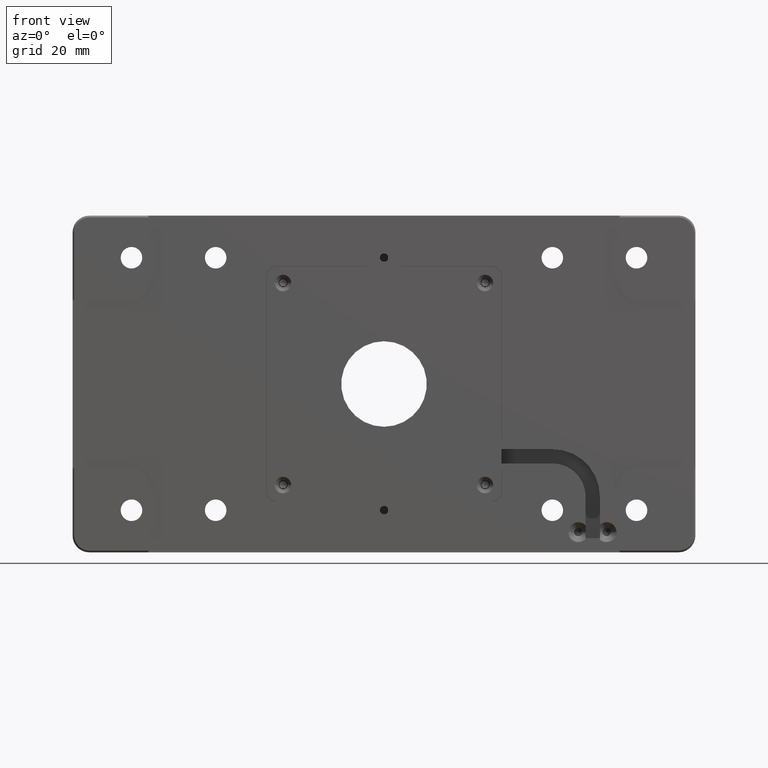
[diagram: clean part render]
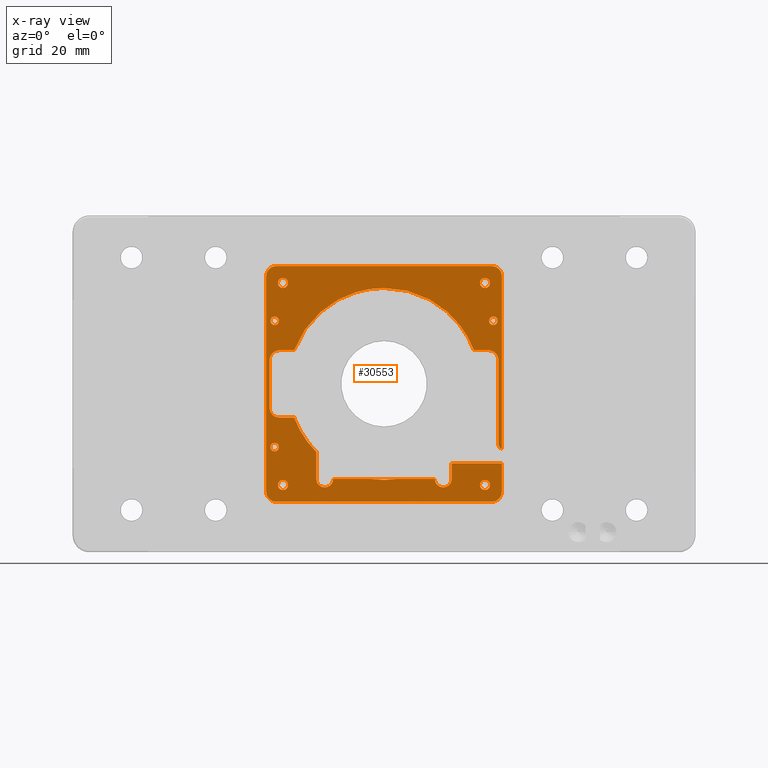
[diagram: x-ray — body ghosted, one internal face saturated and labeled with its STEP entity id]
A machine part, front view, then the same camera in x-ray: the body is ghosted and one INTERNAL B-rep face — a face not visible from any outside direction — is saturated and labeled: STEP entity #30553.
In plain terms, the highlighted planar face has unit normal (0, -1, 0).
Its self-contained STEP definition (entity closure, byte-faithful):
#87 = CARTESIAN_POINT ( 'NONE',  ( -26.68801229016583300, -28.00000000000000000, -9.999999999999305400 ) ) ;
#330 = B_SPLINE_CURVE_WITH_KNOTS ( 'NONE', 3,
 ( #2020, #46454, #46441, #2210, #2146, #2069, #46385, #46393, #2505, #2255 ),
 .UNSPECIFIED., .F., .F.,
 ( 4, 2, 2, 2, 4 ),
 ( 0.0000000000000000000, 0.2500000000000000000, 0.5000000000000000000, 0.7500000000000000000, 1.000000000000000000 ),
 .UNSPECIFIED. ) ;
#340 = VERTEX_POINT ( 'NONE', #19269 ) ;
#357 = CARTESIAN_POINT ( 'NONE',  ( -33.66712913765897500, -28.00000000000000400, 19.18663264980484200 ) ) ;
#432 = CARTESIAN_POINT ( 'NONE',  ( 31.22590219435385400, -28.00000000000000000, 18.74999989958487800 ) ) ;
#619 = CARTESIAN_POINT ( 'NONE',  ( 31.22595284015132600, -28.00000000000000000, 18.53144307675582100 ) ) ;
#665 = EDGE_CURVE ( 'NONE', #41401, #27087, #330, .T. ) ;
#682 = CARTESIAN_POINT ( 'NONE',  ( 31.28462856218772000, -28.00000000000000000, 18.31324466899677400 ) ) ;
#704 = EDGE_CURVE ( 'NONE', #25245, #1209, #22966, .T. ) ;
#805 = CARTESIAN_POINT ( 'NONE',  ( 31.50221328749738000, -28.00000000000000000, 17.93675520057112700 ) ) ;
#859 = DIRECTION ( 'NONE',  ( 0.0000000000000000000, -1.000000000000000000, 0.0000000000000000000 ) ) ;
#870 = CARTESIAN_POINT ( 'NONE',  ( -34.00000000000000700, -27.99999999999999600, 6.999999999999995600 ) ) ;
#872 = CARTESIAN_POINT ( 'NONE',  ( 31.66258525230723800, -27.99999999999999600, 17.77611298242323900 ) ) ;
#933 = CARTESIAN_POINT ( 'NONE',  ( -32.00000000000000000, -28.00000000000000400, -32.00000000000000000 ) ) ;
#991 = CARTESIAN_POINT ( 'NONE',  ( 32.03932011848849000, -28.00000000000000000, 17.55882345791289700 ) ) ;
#1085 = EDGE_CURVE ( 'NONE', #53296, #41401, #23192, .T. ) ;
#1152 = VERTEX_POINT ( 'NONE', #16107 ) ;
#1154 = CARTESIAN_POINT ( 'NONE',  ( 32.25849930359140700, -27.99999999999999600, 17.49990541192279600 ) ) ;
#1209 = VERTEX_POINT ( 'NONE', #27990 ) ;
#1217 = CARTESIAN_POINT ( 'NONE',  ( 32.69340603045252900, -28.00000000000000400, 17.50009458807818100 ) ) ;
#1834 = ORIENTED_EDGE ( 'NONE', *, *, #14885, .T. ) ;
#1888 = CARTESIAN_POINT ( 'NONE',  ( 35.00000000000000000, -28.00000000000000400, -32.00000000000000000 ) ) ;
#1938 = ORIENTED_EDGE ( 'NONE', *, *, #14469, .T. ) ;
#1964 = CARTESIAN_POINT ( 'NONE',  ( 35.00000000000000000, -28.00000000000000000, -33.28000000000000100 ) ) ;
#2020 = CARTESIAN_POINT ( 'NONE',  ( -33.10095264191996700, -28.00000000000000000, -17.66746824526988400 ) ) ;
#2069 = CARTESIAN_POINT ( 'NONE',  ( -31.66258525230698200, -27.99999999999999600, -17.77611298242349800 ) ) ;
#2137 = CARTESIAN_POINT ( 'NONE',  ( -33.29020018991170100, -28.00000000000000000, -17.77673036804654300 ) ) ;
#2146 = CARTESIAN_POINT ( 'NONE',  ( -32.03932011848875300, -28.00000000000000000, -17.55882345791264100 ) ) ;
#2194 = CARTESIAN_POINT ( 'NONE',  ( -33.10095264191996700, -28.00000000000000000, -17.66746824526988400 ) ) ;
#2210 = CARTESIAN_POINT ( 'NONE',  ( -32.25849930359140700, -27.99999999999999600, -17.49990541192278600 ) ) ;
#2255 = CARTESIAN_POINT ( 'NONE',  ( -31.22590219435418700, -28.00000000000000000, -18.74999979623689600 ) ) ;
#2310 = LINE ( 'NONE', #37746, #45315 ) ;
#2477 = EDGE_CURVE ( 'NONE', #49043, #8550, #32251, .T. ) ;
#2505 = CARTESIAN_POINT ( 'NONE',  ( -31.22595284015134000, -28.00000000000000000, -18.53144307674995200 ) ) ;
#2561 = VERTEX_POINT ( 'NONE', #37437 ) ;
#2684 = DIRECTION ( 'NONE',  ( 0.0000000000000000000, -1.000000000000000000, 0.0000000000000000000 ) ) ;
#2766 = B_SPLINE_CURVE_WITH_KNOTS ( 'NONE', 3,
 ( #15970, #16026, #15783, #15775, #15617, #15604, #15484, #15475, #15427, #15417 ),
 .UNSPECIFIED., .F., .F.,
 ( 4, 2, 2, 2, 4 ),
 ( 0.0000000000000000000, 0.2499999999999996700, 0.4999999999999997800, 0.7499999999999998900, 1.000000000000000000 ),
 .UNSPECIFIED. ) ;
#2984 = CARTESIAN_POINT ( 'NONE',  ( -7.132304840620642000, -27.99999999999999600, 27.63065664306666500 ) ) ;
#3175 = EDGE_CURVE ( 'NONE', #17336, #49043, #9396, .T. ) ;
#3216 = CARTESIAN_POINT ( 'NONE',  ( 33.10095264191996700, -28.00000000000000000, 17.66746824526988000 ) ) ;
#3435 = CARTESIAN_POINT ( 'NONE',  ( 2.874005661423864000, -28.00000000000000700, 28.39084545426889200 ) ) ;
#3504 = EDGE_LOOP ( 'NONE', ( #34310, #10320, #25775, #6775 ) ) ;
#3514 = VERTEX_POINT ( 'NONE', #15046 ) ;
#3617 = CARTESIAN_POINT ( 'NONE',  ( 23.37137739192552000, -28.00000000000000000, 16.37381072539857700 ) ) ;
#3668 = DIRECTION ( 'NONE',  ( 0.0000000000000000000, 0.0000000000000000000, 1.000000000000000000 ) ) ;
#3825 = CARTESIAN_POINT ( 'NONE',  ( 17.60000000000000100, -28.00000000000000400, -30.69999999999999900 ) ) ;
#3898 = CARTESIAN_POINT ( 'NONE',  ( 34.00000000000001400, -27.99999999999999600, -18.20773985433513800 ) ) ;
#4003 = EDGE_CURVE ( 'NONE', #19454, #11029, #49802, .T. ) ;
#4006 = CARTESIAN_POINT ( 'NONE',  ( -33.10095264191998200, -28.00000000000000000, 17.66746824526987300 ) ) ;
#4059 = CARTESIAN_POINT ( 'NONE',  ( -32.91170511629828600, -28.00000000000000000, 17.55820613540876400 ) ) ;
#4126 = CARTESIAN_POINT ( 'NONE',  ( -32.69340603193760600, -28.00000000000000000, 17.49990542104169600 ) ) ;
#4183 = CARTESIAN_POINT ( 'NONE',  ( -32.25849930651780500, -28.00000000000000000, 17.50009457895926000 ) ) ;
#4199 = CARTESIAN_POINT ( 'NONE',  ( -32.03922553835476400, -27.99999999999999600, 17.55865963294138900 ) ) ;
#4253 = CARTESIAN_POINT ( 'NONE',  ( -31.66267984008189300, -28.00000000000000000, 17.77627680298322600 ) ) ;
#4267 = ORIENTED_EDGE ( 'NONE', *, *, #1085, .T. ) ;
#4277 = DIRECTION ( 'NONE',  ( 0.0000000000000000000, -0.0000000000000000000, 1.000000000000000000 ) ) ;
#4315 = CARTESIAN_POINT ( 'NONE',  ( -31.50206571012599000, -27.99999999999999600, 17.93663250790654500 ) ) ;
#4359 = CARTESIAN_POINT ( 'NONE',  ( 30.00000000000000000, -28.00000000000000000, -28.49999999999999600 ) ) ;
#4362 = CARTESIAN_POINT ( 'NONE',  ( -31.28477614617627400, -28.00000000000000400, 18.31336735019997500 ) ) ;
#4376 = CARTESIAN_POINT ( 'NONE',  ( -31.22595253256890800, -28.00000000000000000, 18.53216587060089900 ) ) ;
#4473 = CARTESIAN_POINT ( 'NONE',  ( -31.22591047489136100, -28.00000000000000000, 18.74999978447374400 ) ) ;
#4497 = CARTESIAN_POINT ( 'NONE',  ( 30.00000000000000000, -28.00000000000000000, 30.00000000000000000 ) ) ;
#4561 = CARTESIAN_POINT ( 'NONE',  ( -33.28922544375562600, -28.00000000000000000, 19.72372319701823400 ) ) ;
#4858 = CARTESIAN_POINT ( 'NONE',  ( -34.00000000000000700, -27.99999999999999600, -7.000000000000000900 ) ) ;
#4934 = EDGE_CURVE ( 'NONE', #11029, #43074, #42996, .T. ) ;
#5052 = EDGE_CURVE ( 'NONE', #8550, #14691, #22258, .T. ) ;
#5137 = DIRECTION ( 'NONE',  ( -1.000000000000000000, 0.0000000000000000000, 0.0000000000000000000 ) ) ;
#5319 = EDGE_CURVE ( 'NONE', #43074, #20417, #32490, .T. ) ;
#5381 = VERTEX_POINT ( 'NONE', #47652 ) ;
#5392 = VERTEX_POINT ( 'NONE', #48069 ) ;
#5490 = ORIENTED_EDGE ( 'NONE', *, *, #8140, .T. ) ;
#5654 = EDGE_CURVE ( 'NONE', #46691, #25245, #2310, .T. ) ;
#5724 = VERTEX_POINT ( 'NONE', #32566 ) ;
#5908 = AXIS2_PLACEMENT_3D ( 'NONE', #40905, #16039, #45034 ) ;
#5978 = ORIENTED_EDGE ( 'NONE', *, *, #45956, .T. ) ;
#6028 = CARTESIAN_POINT ( 'NONE',  ( -31.00000000000000000, -27.99999999999999600, -10.00000000000000000 ) ) ;
#6073 = VERTEX_POINT ( 'NONE', #13065 ) ;
#6158 = DIRECTION ( 'NONE',  ( 0.0000000000000000000, 0.0000000000000000000, -1.000000000000000000 ) ) ;
#6172 = VECTOR ( 'NONE', #24354, 1000.000000000000000 ) ;
#6177 = CARTESIAN_POINT ( 'NONE',  ( -33.72600308948590700, -28.00000000000000400, -18.75000010041512200 ) ) ;
#6187 = CARTESIAN_POINT ( 'NONE',  ( -33.72595244368868400, -28.00000000000000000, -18.96855692324992400 ) ) ;
#6203 = DIRECTION ( 'NONE',  ( 0.0000000000000000000, -1.000000000000000000, 0.0000000000000000000 ) ) ;
#6210 = CARTESIAN_POINT ( 'NONE',  ( -30.00000000000000000, -28.00000000000000000, -30.00000000000000000 ) ) ;
#6234 = CARTESIAN_POINT ( 'NONE',  ( -33.66727672164874700, -28.00000000000000000, -19.18675533101083300 ) ) ;
#6244 = CARTESIAN_POINT ( 'NONE',  ( -33.44969199634621800, -28.00000000000000000, -19.56324479942129800 ) ) ;
#6297 = CARTESIAN_POINT ( 'NONE',  ( -33.28932003153082800, -27.99999999999999600, -19.72388701757728700 ) ) ;
#6358 = B_SPLINE_CURVE_WITH_KNOTS ( 'NONE', 3,
 ( #41522, #41593, #41461, #41410, #41397, #41358 ),
 .UNSPECIFIED., .F., .F.,
 ( 4, 2, 4 ),
 ( 0.0000000000000000000, 0.5000000000000000000, 1.000000000000000000 ),
 .UNSPECIFIED. ) ;
#6367 = CARTESIAN_POINT ( 'NONE',  ( -32.91258516535347000, -28.00000000000000000, -19.94117654208659100 ) ) ;
#6374 = ORIENTED_EDGE ( 'NONE', *, *, #3175, .T. ) ;
#6432 = CARTESIAN_POINT ( 'NONE',  ( -32.69340598024885500, -27.99999999999999600, -20.00009458807862800 ) ) ;
#6480 = CARTESIAN_POINT ( 'NONE',  ( -32.25849925338722100, -28.00000000000000400, -19.99990541192040200 ) ) ;
#6544 = CARTESIAN_POINT ( 'NONE',  ( -32.03957899341080700, -28.00000000000000000, -19.94143522953950100 ) ) ;
#6553 = CARTESIAN_POINT ( 'NONE',  ( -31.85095264192006000, -27.99999999999999600, -19.83253175473011300 ) ) ;
#6697 = ORIENTED_EDGE ( 'NONE', *, *, #8922, .T. ) ;
#6712 = EDGE_CURVE ( 'NONE', #1209, #30735, #10840, .T. ) ;
#6775 = ORIENTED_EDGE ( 'NONE', *, *, #12747, .T. ) ;
#6836 = AXIS2_PLACEMENT_3D ( 'NONE', #44634, #19872, #48713 ) ;
#6881 = CARTESIAN_POINT ( 'NONE',  ( 36.39999999999999900, -28.00000000000000000, 9.999999999999495500 ) ) ;
#7027 = CARTESIAN_POINT ( 'NONE',  ( -25.57737458940992400, -28.00000000000000400, 12.65298080545476900 ) ) ;
#7110 = EDGE_CURVE ( 'NONE', #30735, #37321, #43950, .T. ) ;
#7202 = CARTESIAN_POINT ( 'NONE',  ( -2.873832697296481200, -27.99999999999999600, 28.39092742658381500 ) ) ;
#7650 = CARTESIAN_POINT ( 'NONE',  ( -31.85095264192004500, -27.99999999999999600, 19.83253175473012700 ) ) ;
#7874 = CARTESIAN_POINT ( 'NONE',  ( 25.57751203921187900, -28.00000000000000000, 12.65284760033192600 ) ) ;
#7906 = EDGE_CURVE ( 'NONE', #14691, #17336, #35803, .T. ) ;
#8095 = B_SPLINE_CURVE_WITH_KNOTS ( 'NONE', 3,
 ( #6553, #6544, #6480, #6432, #6367, #6297, #6244, #6234, #6187, #6177 ),
 .UNSPECIFIED., .F., .F.,
 ( 4, 2, 2, 2, 4 ),
 ( 0.0000000000000000000, 0.2500000000000000000, 0.5000000000000000000, 0.7500000000000000000, 1.000000000000000000 ),
 .UNSPECIFIED. ) ;
#8113 = EDGE_CURVE ( 'NONE', #21174, #31301, #33583, .T. ) ;
#8140 = EDGE_CURVE ( 'NONE', #27087, #52023, #23561, .T. ) ;
#8238 = ORIENTED_EDGE ( 'NONE', *, *, #12960, .T. ) ;
#8323 = CARTESIAN_POINT ( 'NONE',  ( 34.99999999999989300, -27.99999999999999600, -19.31421356237236600 ) ) ;
#8550 = VERTEX_POINT ( 'NONE', #19846 ) ;
#8568 = CIRCLE ( 'NONE', #31070, 1.500000000000001300 ) ;
#8747 = AXIS2_PLACEMENT_3D ( 'NONE', #53381, #28824, #3668 ) ;
#8795 = DIRECTION ( 'NONE',  ( 0.0000000000000000000, 0.0000000000000000000, -1.000000000000000000 ) ) ;
#8858 = CARTESIAN_POINT ( 'NONE',  ( -32.69340597730876400, -28.00000000000000000, 19.99990542103791600 ) ) ;
#8877 = ORIENTED_EDGE ( 'NONE', *, *, #5319, .T. ) ;
#8922 = EDGE_CURVE ( 'NONE', #31301, #43010, #13424, .T. ) ;
#9251 = ORIENTED_EDGE ( 'NONE', *, *, #15767, .T. ) ;
#9396 = B_SPLINE_CURVE_WITH_KNOTS ( 'NONE', 3,
 ( #53815, #53589, #53073, #52891, #51475, #51292 ),
 .UNSPECIFIED., .F., .F.,
 ( 4, 2, 4 ),
 ( 0.0000000000000000000, 0.5000000000000000000, 1.000000000000000000 ),
 .UNSPECIFIED. ) ;
#9400 = CARTESIAN_POINT ( 'NONE',  ( 31.78081704920545600, -27.99999999999999600, 9.923673225478440300 ) ) ;
#9553 = EDGE_CURVE ( 'NONE', #43010, #39509, #48984, .T. ) ;
#9650 = EDGE_CURVE ( 'NONE', #37321, #21174, #6358, .T. ) ;
#9802 = FACE_OUTER_BOUND ( 'NONE', #20342, .T. ) ;
#9830 = CARTESIAN_POINT ( 'NONE',  ( -4.124318125459968300, -28.00000000000000400, -28.19999999999993200 ) ) ;
#9841 = DIRECTION ( 'NONE',  ( 0.0000000000000000000, -1.000000000000000000, 0.0000000000000000000 ) ) ;
#9869 = B_SPLINE_CURVE_WITH_KNOTS ( 'NONE', 3,
 ( #50946, #26550, #34863, #9830 ),
 .UNSPECIFIED., .F., .F.,
 ( 4, 4 ),
 ( 0.0000000000000000000, 1.000000000000000000 ),
 .UNSPECIFIED. ) ;
#9903 = LINE ( 'NONE', #53329, #51374 ) ;
#10202 = VECTOR ( 'NONE', #50756, 1000.000000000000000 ) ;
#10236 = CARTESIAN_POINT ( 'NONE',  ( 32.91232629042924200, -28.00000000000000000, 17.55856477046051700 ) ) ;
#10320 = ORIENTED_EDGE ( 'NONE', *, *, #16380, .T. ) ;
#10322 = CIRCLE ( 'NONE', #6836, 1.500000000000001300 ) ;
#10382 = CARTESIAN_POINT ( 'NONE',  ( 20.03635998224450200, -28.00000000000000400, -28.85073236080429000 ) ) ;
#10609 = CARTESIAN_POINT ( 'NONE',  ( 34.00000000000000000, -27.99999999999999600, -17.89999999999999900 ) ) ;
#10674 = EDGE_CURVE ( 'NONE', #39509, #5392, #2766, .T. ) ;
#10740 = VECTOR ( 'NONE', #44658, 1000.000000000000000 ) ;
#10840 = B_SPLINE_CURVE_WITH_KNOTS ( 'NONE', 3,
 ( #33222, #21507, #10862, #25906, #24327, #51919, #46786, #42909, #31877, #49037 ),
 .UNSPECIFIED., .F., .F.,
 ( 4, 2, 2, 2, 4 ),
 ( 0.0000000000000000000, 0.2500000000000000000, 0.5000000000000000000, 0.7500000000000000000, 1.000000000000000000 ),
 .UNSPECIFIED. ) ;
#10862 = CARTESIAN_POINT ( 'NONE',  ( -18.25073236079884300, -28.00000000000000400, -30.63635998224676300 ) ) ;
#10950 = EDGE_CURVE ( 'NONE', #52023, #53296, #8095, .T. ) ;
#11018 = EDGE_CURVE ( 'NONE', #24202, #47863, #14863, .T. ) ;
#11029 = VERTEX_POINT ( 'NONE', #3825 ) ;
#11054 = CARTESIAN_POINT ( 'NONE',  ( 32.00000000000000000, -27.99999999999999600, 32.00000000000000000 ) ) ;
#11118 = FACE_BOUND ( 'NONE', #24836, .T. ) ;
#11252 = CARTESIAN_POINT ( 'NONE',  ( -23.37133373004273900, -28.00000000000000000, 16.37377672839752700 ) ) ;
#11303 = EDGE_CURVE ( 'NONE', #5392, #5381, #9903, .T. ) ;
#11442 = CARTESIAN_POINT ( 'NONE',  ( 2.094146026541974000E-015, -27.99999999999999600, 28.49999999999999600 ) ) ;
#11445 = AXIS2_PLACEMENT_3D ( 'NONE', #6210, #6203, #6158 ) ;
#11480 = LINE ( 'NONE', #1964, #43368 ) ;
#11536 = ORIENTED_EDGE ( 'NONE', *, *, #13284, .F. ) ;
#11545 = LINE ( 'NONE', #21785, #45990 ) ;
#11649 = EDGE_CURVE ( 'NONE', #20417, #33311, #39212, .T. ) ;
#11889 = ORIENTED_EDGE ( 'NONE', *, *, #13602, .F. ) ;
#11911 = CARTESIAN_POINT ( 'NONE',  ( 30.00000000000000000, -28.00000000000000000, -31.50000000000000000 ) ) ;
#11918 = CARTESIAN_POINT ( 'NONE',  ( 7.132288325055107200, -28.00000000000000000, 27.63060382836711100 ) ) ;
#11936 = VERTEX_POINT ( 'NONE', #46908 ) ;
#12010 = EDGE_CURVE ( 'NONE', #29478, #50358, #41780, .T. ) ;
#12105 = CARTESIAN_POINT ( 'NONE',  ( 26.68801229016617400, -27.99999999999999600, 9.999999999999532800 ) ) ;
#12143 = DIRECTION ( 'NONE',  ( 0.0000000000000000000, -0.0000000000000000000, -1.000000000000000000 ) ) ;
#12175 = VERTEX_POINT ( 'NONE', #39310 ) ;
#12189 = VERTEX_POINT ( 'NONE', #38003 ) ;
#12361 = CARTESIAN_POINT ( 'NONE',  ( 33.10095264191996700, -28.00000000000000000, 17.66746824526988000 ) ) ;
#12533 = CARTESIAN_POINT ( 'NONE',  ( 33.29020018991509700, -28.00000000000000000, 17.77673036804850100 ) ) ;
#12564 = EDGE_LOOP ( 'NONE', ( #37147, #20383, #6374, #18119 ) ) ;
#12663 = VECTOR ( 'NONE', #50438, 1000.000000000000000 ) ;
#12729 = CARTESIAN_POINT ( 'NONE',  ( 33.44983964673740200, -27.99999999999999600, 17.93663258842120100 ) ) ;
#12747 = EDGE_CURVE ( 'NONE', #47863, #38130, #25337, .T. ) ;
#12910 = CARTESIAN_POINT ( 'NONE',  ( 33.66712919676649600, -28.00000000000000400, 18.31336749853451100 ) ) ;
#12916 = EDGE_LOOP ( 'NONE', ( #14213, #31626 ) ) ;
#12960 = EDGE_CURVE ( 'NONE', #3514, #19454, #38400, .T. ) ;
#13065 = CARTESIAN_POINT ( 'NONE',  ( -32.00000000000000000, -27.99999999999999600, 35.00000000000000000 ) ) ;
#13089 = CARTESIAN_POINT ( 'NONE',  ( -32.04020016754425600, -28.00000000000000000, 19.94179386459269700 ) ) ;
#13257 = CARTESIAN_POINT ( 'NONE',  ( 33.72595281056379000, -28.00000000000000000, 18.53216075167965800 ) ) ;
#13284 = EDGE_CURVE ( 'NONE', #50358, #29478, #37734, .T. ) ;
#13424 = B_SPLINE_CURVE_WITH_KNOTS ( 'NONE', 3,
 ( #29695, #29749, #29806, #28571, #28973, #28518, #28257, #26005, #25038, #24987 ),
 .UNSPECIFIED., .F., .F.,
 ( 4, 2, 2, 2, 4 ),
 ( 0.0000000000000000000, 0.2500000000000000000, 0.5000000000000000000, 0.7500000000000000000, 1.000000000000000000 ),
 .UNSPECIFIED. ) ;
#13449 = EDGE_CURVE ( 'NONE', #12175, #30241, #10322, .T. ) ;
#13473 = ORIENTED_EDGE ( 'NONE', *, *, #9553, .T. ) ;
#13517 = EDGE_CURVE ( 'NONE', #19094, #23963, #36738, .T. ) ;
#13602 = EDGE_CURVE ( 'NONE', #33779, #11936, #40940, .T. ) ;
#13643 = CARTESIAN_POINT ( 'NONE',  ( 32.84022219543297200, -28.00000000000000000, 9.402316104331871900 ) ) ;
#13750 = EDGE_CURVE ( 'NONE', #50487, #26177, #53670, .T. ) ;
#13829 = EDGE_CURVE ( 'NONE', #23963, #5724, #51099, .T. ) ;
#13914 = CARTESIAN_POINT ( 'NONE',  ( -15.10000000000000100, -28.00000000000000400, -28.20000000000000300 ) ) ;
#13991 = EDGE_CURVE ( 'NONE', #17605, #30455, #40295, .T. ) ;
#14064 = EDGE_CURVE ( 'NONE', #17605, #38317, #14251, .T. ) ;
#14213 = ORIENTED_EDGE ( 'NONE', *, *, #27012, .F. ) ;
#14251 = LINE ( 'NONE', #25234, #22799 ) ;
#14265 = CARTESIAN_POINT ( 'NONE',  ( 18.25061273245204100, -28.00000000000000000, -30.63656627709274000 ) ) ;
#14345 = CARTESIAN_POINT ( 'NONE',  ( 33.72600308948555900, -28.00000000000000000, 18.75000020670407600 ) ) ;
#14402 = EDGE_CURVE ( 'NONE', #38317, #19253, #34463, .T. ) ;
#14469 = EDGE_CURVE ( 'NONE', #19253, #6073, #45375, .T. ) ;
#14548 = EDGE_CURVE ( 'NONE', #6073, #340, #40230, .T. ) ;
#14553 = B_SPLINE_CURVE_WITH_KNOTS ( 'NONE', 3,
 ( #21409, #17126, #357, #29716, #4561, #33903, #8858, #37998, #13089, #42155 ),
 .UNSPECIFIED., .F., .F.,
 ( 4, 2, 2, 2, 4 ),
 ( 0.0000000000000000000, 0.2500000000000000000, 0.5000000000000000000, 0.7500000000000000000, 1.000000000000000000 ),
 .UNSPECIFIED. ) ;
#14691 = VERTEX_POINT ( 'NONE', #49670 ) ;
#14809 = EDGE_CURVE ( 'NONE', #340, #1152, #11545, .T. ) ;
#14834 = ORIENTED_EDGE ( 'NONE', *, *, #14064, .T. ) ;
#14863 = B_SPLINE_CURVE_WITH_KNOTS ( 'NONE', 3,
 ( #4473, #4376, #4362, #4315, #4253, #4199, #4183, #4126, #4059, #4006 ),
 .UNSPECIFIED., .F., .F.,
 ( 4, 2, 2, 2, 4 ),
 ( 0.0000000000000000000, 0.2500000000000000000, 0.5000000000000000000, 0.7500000000000000000, 1.000000000000000000 ),
 .UNSPECIFIED. ) ;
#14873 = EDGE_CURVE ( 'NONE', #1152, #24010, #21471, .T. ) ;
#14874 = CARTESIAN_POINT ( 'NONE',  ( 20.10000000000000900, -28.00000000000000000, -28.53133115260559500 ) ) ;
#14885 = EDGE_CURVE ( 'NONE', #5724, #24231, #45715, .T. ) ;
#15046 = CARTESIAN_POINT ( 'NONE',  ( 20.10000000000000500, -28.00000000000000000, -23.59999999999999800 ) ) ;
#15075 = AXIS2_PLACEMENT_3D ( 'NONE', #19474, #2684, #32032 ) ;
#15076 = CARTESIAN_POINT ( 'NONE',  ( -33.66712919676511700, -28.00000000000000400, -18.31336749853455000 ) ) ;
#15093 = CARTESIAN_POINT ( 'NONE',  ( -33.72595281056378300, -28.00000000000000000, -18.53216075167403100 ) ) ;
#15319 = DIRECTION ( 'NONE',  ( -1.000000000000000000, 0.0000000000000000000, 0.0000000000000000000 ) ) ;
#15382 = EDGE_CURVE ( 'NONE', #24010, #2561, #40178, .T. ) ;
#15417 = CARTESIAN_POINT ( 'NONE',  ( -31.00000000000000000, -27.99999999999999600, 10.00000000000000200 ) ) ;
#15422 = CARTESIAN_POINT ( 'NONE',  ( 20.10000000000000500, -27.99999999999999600, -28.19999999999999600 ) ) ;
#15427 = CARTESIAN_POINT ( 'NONE',  ( -31.39801401208922000, -28.00000000000000400, 10.00000000000000200 ) ) ;
#15454 = EDGE_CURVE ( 'NONE', #2561, #49852, #47207, .T. ) ;
#15475 = CARTESIAN_POINT ( 'NONE',  ( -31.78069744445431200, -28.00000000000000400, 9.923879532511287800 ) ) ;
#15484 = CARTESIAN_POINT ( 'NONE',  ( -32.51540314973621500, -28.00000000000000000, 9.619397662556423300 ) ) ;
#15525 = CARTESIAN_POINT ( 'NONE',  ( -20.63533303619852400, -27.99999999999999300, 19.70997322765100900 ) ) ;
#15532 = EDGE_CURVE ( 'NONE', #49852, #12189, #11480, .T. ) ;
#15604 = CARTESIAN_POINT ( 'NONE',  ( -32.84032458278743100, -28.00000000000000700, 9.402418491686315600 ) ) ;
#15611 = CARTESIAN_POINT ( 'NONE',  ( 19.78303768031192400, -27.99999999999999600, -29.46268480102115100 ) ) ;
#15617 = CARTESIAN_POINT ( 'NONE',  ( -33.40231610433185900, -28.00000000000000700, 8.840222195432968300 ) ) ;
#15767 = EDGE_CURVE ( 'NONE', #12189, #3514, #38191, .T. ) ;
#15775 = CARTESIAN_POINT ( 'NONE',  ( -33.61960396959365500, -27.99999999999999600, 8.515283544980691800 ) ) ;
#15783 = CARTESIAN_POINT ( 'NONE',  ( -33.92367322547407600, -27.99999999999999300, 7.780817049209848500 ) ) ;
#15970 = CARTESIAN_POINT ( 'NONE',  ( -34.00000000000000700, -27.99999999999999600, 6.999999999999995600 ) ) ;
#16026 = CARTESIAN_POINT ( 'NONE',  ( -34.00000000000001400, -27.99999999999999600, 7.397635290875415500 ) ) ;
#16039 = DIRECTION ( 'NONE',  ( 0.0000000000000000000, -1.000000000000000000, 0.0000000000000000000 ) ) ;
#16107 = CARTESIAN_POINT ( 'NONE',  ( -35.00000000000000000, -28.00000000000000000, -32.00000000000000000 ) ) ;
#16152 = CARTESIAN_POINT ( 'NONE',  ( 19.60187862803531500, -28.00000000000000000, -29.73355290977552900 ) ) ;
#16178 = CARTESIAN_POINT ( 'NONE',  ( 11.21637464472141900, -27.99999999999999300, 26.23914926172906800 ) ) ;
#16186 = VERTEX_POINT ( 'NONE', #43548 ) ;
#16226 = CARTESIAN_POINT ( 'NONE',  ( -20.10000000000000900, -28.00000000000000000, -36.39999999999999900 ) ) ;
#16334 = CARTESIAN_POINT ( 'NONE',  ( 19.13365527789742900, -27.99999999999999600, -30.20198099615721100 ) ) ;
#16380 = EDGE_CURVE ( 'NONE', #16186, #24202, #42310, .T. ) ;
#16510 = CARTESIAN_POINT ( 'NONE',  ( 18.86280442937341600, -28.00000000000000000, -30.38283138546369200 ) ) ;
#16616 = EDGE_CURVE ( 'NONE', #30241, #12175, #42644, .T. ) ;
#16787 = CARTESIAN_POINT ( 'NONE',  ( 20.10000000000000500, -28.00000000000000000, -36.39999999999999900 ) ) ;
#16841 = DIRECTION ( 'NONE',  ( 0.0000000000000000000, -0.0000000000000000000, -1.000000000000000000 ) ) ;
#16862 = CARTESIAN_POINT ( 'NONE',  ( 17.93170987214779900, -28.00000000000000000, -30.69999999999999900 ) ) ;
#17025 = ORIENTED_EDGE ( 'NONE', *, *, #13517, .T. ) ;
#17034 = CARTESIAN_POINT ( 'NONE',  ( 17.60000000000000100, -28.00000000000000400, -30.69999999999999900 ) ) ;
#17126 = CARTESIAN_POINT ( 'NONE',  ( -33.72595275127112300, -28.00000000000000000, 18.96783412941157800 ) ) ;
#17336 = VERTEX_POINT ( 'NONE', #51461 ) ;
#17605 = VERTEX_POINT ( 'NONE', #8323 ) ;
#17867 = CARTESIAN_POINT ( 'NONE',  ( 33.61939766255645200, -28.00000000000000000, 8.515403149736204800 ) ) ;
#18020 = EDGE_CURVE ( 'NONE', #24231, #30455, #21796, .T. ) ;
#18119 = ORIENTED_EDGE ( 'NONE', *, *, #2477, .T. ) ;
#18293 = AXIS2_PLACEMENT_3D ( 'NONE', #44072, #44012, #44002 ) ;
#18497 = CARTESIAN_POINT ( 'NONE',  ( 34.00000000000000000, -27.99999999999999600, 7.000000000000000900 ) ) ;
#19094 = VERTEX_POINT ( 'NONE', #30111 ) ;
#19215 = AXIS2_PLACEMENT_3D ( 'NONE', #22536, #51280, #26729 ) ;
#19253 = VERTEX_POINT ( 'NONE', #21672 ) ;
#19269 = CARTESIAN_POINT ( 'NONE',  ( -35.00000000000000000, -27.99999999999999600, 32.00000000000000000 ) ) ;
#19454 = VERTEX_POINT ( 'NONE', #48291 ) ;
#19474 = CARTESIAN_POINT ( 'NONE',  ( 36.39999999999999900, -28.00000000000000000, -36.39999999999999900 ) ) ;
#19533 = CARTESIAN_POINT ( 'NONE',  ( 33.72595244368870500, -28.00000000000000000, 18.96855692323890700 ) ) ;
#19553 = VECTOR ( 'NONE', #40264, 1000.000000000000000 ) ;
#19709 = CARTESIAN_POINT ( 'NONE',  ( 33.66727672165424000, -28.00000000000000000, 19.18675533100134700 ) ) ;
#19761 = CARTESIAN_POINT ( 'NONE',  ( -17.41934897229161200, -28.00000000000000000, 22.60278934231655200 ) ) ;
#19846 = CARTESIAN_POINT ( 'NONE',  ( 33.72600308948555900, -28.00000000000000000, 18.75000020670407600 ) ) ;
#19872 = DIRECTION ( 'NONE',  ( 0.0000000000000000000, -1.000000000000000000, 0.0000000000000000000 ) ) ;
#20342 = EDGE_LOOP ( 'NONE', ( #49001, #14834, #31132, #1938, #39934, #26262, #52817, #26366, #47435, #29239, #9251, #8238, #20613, #46571, #8877, #23575, #5978, #48681, #52620, #44524, #23102, #32015, #23493, #6697, #13473, #21987, #44237, #37532, #17025, #43756, #1834, #51799 ) ) ;
#20383 = ORIENTED_EDGE ( 'NONE', *, *, #7906, .T. ) ;
#20390 = CARTESIAN_POINT ( 'NONE',  ( -31.28462582824703700, -27.99999999999999600, 19.18675055515830500 ) ) ;
#20417 = VERTEX_POINT ( 'NONE', #39821 ) ;
#20418 = CARTESIAN_POINT ( 'NONE',  ( 15.05368526441172100, -28.00000000000000000, 24.24265589064396000 ) ) ;
#20613 = ORIENTED_EDGE ( 'NONE', *, *, #4003, .T. ) ;
#20791 = CARTESIAN_POINT ( 'NONE',  ( 33.44969199634074600, -28.00000000000000000, 19.56324479943078700 ) ) ;
#20927 = CARTESIAN_POINT ( 'NONE',  ( -33.10095264191998200, -28.00000000000000000, 17.66746824526987300 ) ) ;
#21096 = CARTESIAN_POINT ( 'NONE',  ( -20.10000000000000500, -28.00000000000000000, -28.20000000000000300 ) ) ;
#21174 = VERTEX_POINT ( 'NONE', #87 ) ;
#21409 = CARTESIAN_POINT ( 'NONE',  ( -33.72599480894907500, -28.00000000000000400, 18.75000010923730900 ) ) ;
#21471 = CIRCLE ( 'NONE', #23663, 3.000000000000002700 ) ;
#21507 = CARTESIAN_POINT ( 'NONE',  ( -17.93133115260560500, -28.00000000000000000, -30.69999999999999900 ) ) ;
#21672 = CARTESIAN_POINT ( 'NONE',  ( 32.00000000000000000, -27.99999999999999600, 35.00000000000000000 ) ) ;
#21764 = EDGE_LOOP ( 'NONE', ( #42370, #11536 ) ) ;
#21785 = CARTESIAN_POINT ( 'NONE',  ( -35.00000000000000000, -27.99999999999999600, 33.28000000000000100 ) ) ;
#21796 = LINE ( 'NONE', #28809, #31526 ) ;
#21955 = CARTESIAN_POINT ( 'NONE',  ( 31.39763529088159500, -28.00000000000000400, 10.00000000000000200 ) ) ;
#21987 = ORIENTED_EDGE ( 'NONE', *, *, #10674, .T. ) ;
#22129 = CARTESIAN_POINT ( 'NONE',  ( 34.00000000000000700, -28.00000000000000000, 7.398014012089243300 ) ) ;
#22242 = DIRECTION ( 'NONE',  ( -0.0000000000000000000, -1.000000000000000000, -5.782411586589351700E-016 ) ) ;
#22258 = B_SPLINE_CURVE_WITH_KNOTS ( 'NONE', 3,
 ( #14345, #13257, #12910, #12729, #12533, #12361 ),
 .UNSPECIFIED., .F., .F.,
 ( 4, 2, 4 ),
 ( 0.0000000000000000000, 0.5000000000000000000, 1.000000000000000000 ),
 .UNSPECIFIED. ) ;
#22349 = FACE_BOUND ( 'NONE', #21764, .T. ) ;
#22536 = CARTESIAN_POINT ( 'NONE',  ( -30.00000000000000000, -28.00000000000000000, 30.00000000000000000 ) ) ;
#22799 = VECTOR ( 'NONE', #4277, 1000.000000000000000 ) ;
#22822 = CARTESIAN_POINT ( 'NONE',  ( -33.72599480894907500, -28.00000000000000400, 18.75000010923730900 ) ) ;
#22879 = CARTESIAN_POINT ( 'NONE',  ( -33.72595251207592800, -28.00000000000000000, 18.53144863337557200 ) ) ;
#22881 = EDGE_CURVE ( 'NONE', #11936, #33779, #28551, .T. ) ;
#22886 = CARTESIAN_POINT ( 'NONE',  ( -33.66727945558747600, -27.99999999999999600, 18.31324944483217400 ) ) ;
#22951 = CARTESIAN_POINT ( 'NONE',  ( -33.44968939232791900, -28.00000000000000400, 17.93675064976444100 ) ) ;
#22966 = B_SPLINE_CURVE_WITH_KNOTS ( 'NONE', 3,
 ( #37077, #37134, #37652, #37424, #37362, #37298, #37882, #37833, #37716, #37533 ),
 .UNSPECIFIED., .F., .F.,
 ( 4, 2, 2, 2, 4 ),
 ( 0.0000000000000000000, 0.2499999999999991100, 0.4999999999999982200, 0.7499999999999991100, 1.000000000000000000 ),
 .UNSPECIFIED. ) ;
#23002 = CARTESIAN_POINT ( 'NONE',  ( -33.10095264191998200, -28.00000000000000000, 17.66746824526987300 ) ) ;
#23102 = ORIENTED_EDGE ( 'NONE', *, *, #7110, .T. ) ;
#23192 = B_SPLINE_CURVE_WITH_KNOTS ( 'NONE', 3,
 ( #30305, #15093, #15076, #30562, #2137, #2194 ),
 .UNSPECIFIED., .F., .F.,
 ( 4, 2, 4 ),
 ( 0.0000000000000000000, 0.5000000000000000000, 1.000000000000000000 ),
 .UNSPECIFIED. ) ;
#23419 = CARTESIAN_POINT ( 'NONE',  ( -33.28957901642008500, -28.00000000000000000, 17.77637173336392700 ) ) ;
#23493 = ORIENTED_EDGE ( 'NONE', *, *, #8113, .T. ) ;
#23561 = B_SPLINE_CURVE_WITH_KNOTS ( 'NONE', 3,
 ( #48179, #49152, #48009, #47948, #47882, #47832 ),
 .UNSPECIFIED., .F., .F.,
 ( 4, 2, 4 ),
 ( 0.0000000000000000000, 0.5000000000000000000, 1.000000000000000000 ),
 .UNSPECIFIED. ) ;
#23575 = ORIENTED_EDGE ( 'NONE', *, *, #11649, .T. ) ;
#23663 = AXIS2_PLACEMENT_3D ( 'NONE', #933, #30271, #5137 ) ;
#23768 = CARTESIAN_POINT ( 'NONE',  ( -26.18295587468006500, -28.00000000000001100, 11.34789518237228700 ) ) ;
#23942 = CARTESIAN_POINT ( 'NONE',  ( -13.81234361346903900, -28.00000000000000000, 24.97036599759451300 ) ) ;
#23963 = VERTEX_POINT ( 'NONE', #32747 ) ;
#24010 = VERTEX_POINT ( 'NONE', #45658 ) ;
#24121 = CARTESIAN_POINT ( 'NONE',  ( -30.00000000000000000, -28.00000000000000000, 31.50000000000000000 ) ) ;
#24202 = VERTEX_POINT ( 'NONE', #42602 ) ;
#24231 = VERTEX_POINT ( 'NONE', #18497 ) ;
#24327 = CARTESIAN_POINT ( 'NONE',  ( -19.13355290977219500, -28.00000000000000000, -30.20187862804182500 ) ) ;
#24354 = DIRECTION ( 'NONE',  ( -1.000000000000000000, 0.0000000000000000000, 0.0000000000000000000 ) ) ;
#24564 = CARTESIAN_POINT ( 'NONE',  ( -31.22591047489136100, -28.00000000000000000, 18.74999978447374400 ) ) ;
#24596 = CARTESIAN_POINT ( 'NONE',  ( 18.53635082454991300, -27.99999999999999300, 21.69570723114558300 ) ) ;
#24609 = CARTESIAN_POINT ( 'NONE',  ( 33.28932003152895200, -27.99999999999999600, 19.72388701758060500 ) ) ;
#24836 = EDGE_LOOP ( 'NONE', ( #35140, #11889 ) ) ;
#24987 = CARTESIAN_POINT ( 'NONE',  ( -34.00000000000000700, -27.99999999999999600, -7.000000000000000900 ) ) ;
#25038 = CARTESIAN_POINT ( 'NONE',  ( -34.00000000000001400, -28.00000000000000000, -7.398014012091769200 ) ) ;
#25234 = CARTESIAN_POINT ( 'NONE',  ( 35.00000000000000000, -28.00000000000000000, -33.28000000000000100 ) ) ;
#25245 = VERTEX_POINT ( 'NONE', #13914 ) ;
#25337 = B_SPLINE_CURVE_WITH_KNOTS ( 'NONE', 3,
 ( #23002, #23419, #22951, #22886, #22879, #22822 ),
 .UNSPECIFIED., .F., .F.,
 ( 4, 2, 4 ),
 ( 0.0000000000000000000, 0.5000000000000000000, 1.000000000000000000 ),
 .UNSPECIFIED. ) ;
#25679 = CARTESIAN_POINT ( 'NONE',  ( 32.91258516535535300, -28.00000000000000000, 19.94117654208326900 ) ) ;
#25775 = ORIENTED_EDGE ( 'NONE', *, *, #11018, .T. ) ;
#25869 = CARTESIAN_POINT ( 'NONE',  ( 32.69340598024471900, -27.99999999999999600, 20.00009458807862800 ) ) ;
#25906 = CARTESIAN_POINT ( 'NONE',  ( -18.86268480102661000, -27.99999999999999600, -30.38303768030967000 ) ) ;
#26005 = CARTESIAN_POINT ( 'NONE',  ( -33.92387953251130000, -28.00000000000000000, -7.780697444456860600 ) ) ;
#26042 = CARTESIAN_POINT ( 'NONE',  ( 30.00000000000000000, -28.00000000000000000, -30.00000000000000000 ) ) ;
#26049 = CARTESIAN_POINT ( 'NONE',  ( -33.28000000000000100, -27.99999999999999600, -35.00000000000000000 ) ) ;
#26177 = VERTEX_POINT ( 'NONE', #4359 ) ;
#26262 = ORIENTED_EDGE ( 'NONE', *, *, #14809, .T. ) ;
#26366 = ORIENTED_EDGE ( 'NONE', *, *, #15382, .T. ) ;
#26550 = CARTESIAN_POINT ( 'NONE',  ( -1.382046638161690300, -28.00000000000000000, -28.49999999999999600 ) ) ;
#26582 = CARTESIAN_POINT ( 'NONE',  ( -31.22590219435418700, -28.00000000000000000, -18.74999979623689600 ) ) ;
#26729 = DIRECTION ( 'NONE',  ( 0.0000000000000000000, 0.0000000000000000000, -1.000000000000000000 ) ) ;
#27012 = EDGE_CURVE ( 'NONE', #26177, #50487, #8568, .T. ) ;
#27087 = VERTEX_POINT ( 'NONE', #26582 ) ;
#27439 = VECTOR ( 'NONE', #16841, 1000.000000000000000 ) ;
#27834 = PLANE ( 'NONE',  #15075 ) ;
#27990 = CARTESIAN_POINT ( 'NONE',  ( -17.60000000000000500, -28.00000000000000400, -30.69999999999999900 ) ) ;
#28069 = CARTESIAN_POINT ( 'NONE',  ( 32.25849925339135600, -28.00000000000000400, 19.99990541192041200 ) ) ;
#28126 = CARTESIAN_POINT ( 'NONE',  ( -9.879559099660946600, -28.00000000000000700, 26.77151689142870300 ) ) ;
#28250 = CARTESIAN_POINT ( 'NONE',  ( 31.85095264192006000, -27.99999999999999600, 19.83253175473012000 ) ) ;
#28257 = CARTESIAN_POINT ( 'NONE',  ( -33.61939766255643000, -28.00000000000000000, -8.515403149733684200 ) ) ;
#28518 = CARTESIAN_POINT ( 'NONE',  ( -33.40241849168180000, -27.99999999999999600, -8.840324582795778600 ) ) ;
#28551 = CIRCLE ( 'NONE', #5908, 1.500000000000001300 ) ;
#28569 = CARTESIAN_POINT ( 'NONE',  ( -31.66232626741312500, -28.00000000000000000, 19.72362826663214000 ) ) ;
#28571 = CARTESIAN_POINT ( 'NONE',  ( -32.51528354497853000, -27.99999999999999600, -9.619603969591981500 ) ) ;
#28598 = CARTESIAN_POINT ( 'NONE',  ( 2.094146026541974000E-015, -27.99999999999999600, 28.49999999999999600 ) ) ;
#28774 = CARTESIAN_POINT ( 'NONE',  ( 21.60291160798845000, -27.99999999999999300, 18.64494609080231400 ) ) ;
#28788 = CARTESIAN_POINT ( 'NONE',  ( 32.03957899340827000, -28.00000000000000000, 19.94143522953805100 ) ) ;
#28809 = CARTESIAN_POINT ( 'NONE',  ( 34.00000000000000000, -28.00000000000000000, -36.39999999999999900 ) ) ;
#28824 = DIRECTION ( 'NONE',  ( -0.0000000000000000000, -1.000000000000000000, 5.782411586589351700E-016 ) ) ;
#28830 = CARTESIAN_POINT ( 'NONE',  ( 15.10000000000000100, -28.00000000000000000, -28.19999999999999600 ) ) ;
#28973 = CARTESIAN_POINT ( 'NONE',  ( -32.84022219543750500, -28.00000000000000000, -9.402316104323512400 ) ) ;
#29007 = CARTESIAN_POINT ( 'NONE',  ( 15.10000000000000300, -28.00000000000000000, -28.53170987214629800 ) ) ;
#29063 = CARTESIAN_POINT ( 'NONE',  ( 34.09758144086758600, -28.00000000000000000, -18.51475686490444500 ) ) ;
#29191 = CARTESIAN_POINT ( 'NONE',  ( 15.16343372290726600, -28.00000000000000000, -28.85061273245054300 ) ) ;
#29210 = VECTOR ( 'NONE', #50629, 1000.000000000000000 ) ;
#29239 = ORIENTED_EDGE ( 'NONE', *, *, #15532, .T. ) ;
#29365 = CARTESIAN_POINT ( 'NONE',  ( 15.41716861453630800, -28.00000000000000000, -29.46280442937490600 ) ) ;
#29440 = ORIENTED_EDGE ( 'NONE', *, *, #16616, .F. ) ;
#29478 = VERTEX_POINT ( 'NONE', #33858 ) ;
#29497 = CARTESIAN_POINT ( 'NONE',  ( 33.72600308948555900, -28.00000000000000000, 18.75000020670407600 ) ) ;
#29695 = CARTESIAN_POINT ( 'NONE',  ( -31.00000000000000000, -27.99999999999999600, -10.00000000000000000 ) ) ;
#29716 = CARTESIAN_POINT ( 'NONE',  ( -33.44983957371882600, -27.99999999999999600, 19.56336749208865900 ) ) ;
#29749 = CARTESIAN_POINT ( 'NONE',  ( -31.39763529088160300, -28.00000000000000000, -10.00000000000000000 ) ) ;
#29806 = CARTESIAN_POINT ( 'NONE',  ( -31.78081704921199700, -28.00000000000000400, -9.923673225475726100 ) ) ;
#29899 = CARTESIAN_POINT ( 'NONE',  ( 15.59801900384022500, -27.99999999999999600, -29.73365527789272300 ) ) ;
#30090 = CARTESIAN_POINT ( 'NONE',  ( 31.00000000000000000, -27.99999999999999600, 10.00000000000000200 ) ) ;
#30111 = CARTESIAN_POINT ( 'NONE',  ( 2.094146026541974000E-015, -27.99999999999999600, 28.49999999999999600 ) ) ;
#30199 = DIRECTION ( 'NONE',  ( 0.0000000000000000000, 0.0000000000000000000, -1.000000000000000000 ) ) ;
#30241 = VERTEX_POINT ( 'NONE', #24121 ) ;
#30246 = CARTESIAN_POINT ( 'NONE',  ( 16.06644709022704000, -28.00000000000000000, -30.20187862804000600 ) ) ;
#30271 = DIRECTION ( 'NONE',  ( -5.782411586589351700E-016, -1.000000000000000000, -0.0000000000000000000 ) ) ;
#30305 = CARTESIAN_POINT ( 'NONE',  ( -33.72600308948590700, -28.00000000000000400, -18.75000010041512200 ) ) ;
#30431 = CARTESIAN_POINT ( 'NONE',  ( 16.33731519897670400, -27.99999999999999600, -30.38303768031192200 ) ) ;
#30455 = VERTEX_POINT ( 'NONE', #10609 ) ;
#30553 = ADVANCED_FACE ( 'NONE', ( #22349, #32095, #11118, #53828, #9802, #52557, #41727, #30774 ), #27834, .T. ) ;
#30562 = CARTESIAN_POINT ( 'NONE',  ( -33.44983964673878800, -27.99999999999999600, -17.93663258842116200 ) ) ;
#30735 = VERTEX_POINT ( 'NONE', #21096 ) ;
#30774 = FACE_BOUND ( 'NONE', #3504, .T. ) ;
#30785 = CARTESIAN_POINT ( 'NONE',  ( 16.94926763919785600, -28.00000000000000400, -30.63635998224450300 ) ) ;
#31070 = AXIS2_PLACEMENT_3D ( 'NONE', #26042, #859, #30199 ) ;
#31072 = EDGE_CURVE ( 'NONE', #5381, #19094, #32492, .T. ) ;
#31132 = ORIENTED_EDGE ( 'NONE', *, *, #14402, .T. ) ;
#31207 = AXIS2_PLACEMENT_3D ( 'NONE', #11054, #40210, #15319 ) ;
#31301 = VERTEX_POINT ( 'NONE', #6028 ) ;
#31526 = VECTOR ( 'NONE', #12143, 1000.000000000000000 ) ;
#31626 = ORIENTED_EDGE ( 'NONE', *, *, #13750, .F. ) ;
#31710 = CARTESIAN_POINT ( 'NONE',  ( 17.26866884739653300, -28.00000000000000000, -30.70000000000000600 ) ) ;
#31845 = ORIENTED_EDGE ( 'NONE', *, *, #665, .T. ) ;
#31877 = CARTESIAN_POINT ( 'NONE',  ( -20.10000000000000900, -28.00000000000000000, -28.53170987214629100 ) ) ;
#31889 = CARTESIAN_POINT ( 'NONE',  ( 17.60000000000000100, -28.00000000000000400, -30.69999999999999900 ) ) ;
#31993 = CARTESIAN_POINT ( 'NONE',  ( 30.00000000000000000, -28.00000000000000000, 28.49999999999999600 ) ) ;
#32015 = ORIENTED_EDGE ( 'NONE', *, *, #9650, .T. ) ;
#32032 = DIRECTION ( 'NONE',  ( 0.0000000000000000000, -0.0000000000000000000, -1.000000000000000000 ) ) ;
#32095 = FACE_BOUND ( 'NONE', #35988, .T. ) ;
#32251 = B_SPLINE_CURVE_WITH_KNOTS ( 'NONE', 3,
 ( #28250, #28788, #28069, #25869, #25679, #24609, #20791, #19709, #19533, #29497 ),
 .UNSPECIFIED., .F., .F.,
 ( 4, 2, 2, 2, 4 ),
 ( 0.0000000000000000000, 0.2500000000000000000, 0.5000000000000000000, 0.7500000000000000000, 1.000000000000000000 ),
 .UNSPECIFIED. ) ;
#32311 = CARTESIAN_POINT ( 'NONE',  ( -33.10095264191996700, -28.00000000000000000, -17.66746824526988400 ) ) ;
#32324 = CARTESIAN_POINT ( 'NONE',  ( -5.730515382391620200, -27.99999999999999600, 27.95463713291907800 ) ) ;
#32490 = LINE ( 'NONE', #51065, #10202 ) ;
#32492 = B_SPLINE_CURVE_WITH_KNOTS ( 'NONE', 3,
 ( #52510, #23768, #7027, #36252, #11252, #40389, #15525, #44533, #19761, #48620, #23942, #52695, #28126, #2984, #32324, #7202, #36424, #11442 ),
 .UNSPECIFIED., .F., .F.,
 ( 4, 2, 2, 2, 2, 2, 2, 2, 4 ),
 ( 0.0000000000000000000, 0.1249999999999999700, 0.2499999999999999400, 0.3749999999999998900, 0.4999999999999998900, 0.6249999999999998900, 0.7499999999999997800, 0.8749999999999998900, 1.000000000000000000 ),
 .UNSPECIFIED. ) ;
#32566 = CARTESIAN_POINT ( 'NONE',  ( 31.00000000000000000, -27.99999999999999600, 10.00000000000000200 ) ) ;
#32747 = CARTESIAN_POINT ( 'NONE',  ( 26.68801229016617400, -27.99999999999999600, 9.999999999999532800 ) ) ;
#32770 = CARTESIAN_POINT ( 'NONE',  ( 1.439410784142688400, -28.00000000000000000, 28.49999999999999600 ) ) ;
#32946 = CARTESIAN_POINT ( 'NONE',  ( 24.16661563319069500, -27.99999999999999600, 15.17482232579174100 ) ) ;
#33222 = CARTESIAN_POINT ( 'NONE',  ( -17.60000000000000500, -28.00000000000000400, -30.69999999999999900 ) ) ;
#33236 = CARTESIAN_POINT ( 'NONE',  ( 34.00000000000000000, -27.99999999999999600, -17.89999999999999900 ) ) ;
#33311 = VERTEX_POINT ( 'NONE', #35772 ) ;
#33583 = LINE ( 'NONE', #50258, #12663 ) ;
#33779 = VERTEX_POINT ( 'NONE', #31993 ) ;
#33849 = DIRECTION ( 'NONE',  ( 0.0000000000000000000, -1.000000000000000000, 0.0000000000000000000 ) ) ;
#33858 = CARTESIAN_POINT ( 'NONE',  ( -30.00000000000000000, -28.00000000000000000, -28.49999999999999600 ) ) ;
#33903 = CARTESIAN_POINT ( 'NONE',  ( -32.91267974548777900, -27.99999999999999600, 19.94134036705717300 ) ) ;
#34310 = ORIENTED_EDGE ( 'NONE', *, *, #52346, .T. ) ;
#34463 = CIRCLE ( 'NONE', #31207, 3.000000000000002700 ) ;
#34863 = CARTESIAN_POINT ( 'NONE',  ( -2.756819346648347500, -28.00000000000000000, -28.39999999999994200 ) ) ;
#34883 = CARTESIAN_POINT ( 'NONE',  ( 30.00000000000000000, -28.00000000000000000, -30.00000000000000000 ) ) ;
#35140 = ORIENTED_EDGE ( 'NONE', *, *, #22881, .F. ) ;
#35301 = CARTESIAN_POINT ( 'NONE',  ( -30.00000000000000000, -28.00000000000000000, -31.50000000000000000 ) ) ;
#35423 = DIRECTION ( 'NONE',  ( 0.0000000000000000000, -0.0000000000000000000, 1.000000000000000000 ) ) ;
#35772 = CARTESIAN_POINT ( 'NONE',  ( 6.930575333660692400E-015, -28.00000000000000400, -28.49999999999999600 ) ) ;
#35803 = B_SPLINE_CURVE_WITH_KNOTS ( 'NONE', 3,
 ( #3216, #10236, #1217, #1154, #991, #872, #805, #682, #619, #432 ),
 .UNSPECIFIED., .F., .F.,
 ( 4, 2, 2, 2, 4 ),
 ( 0.0000000000000000000, 0.2500000000000000000, 0.5000000000000000000, 0.7500000000000000000, 1.000000000000000000 ),
 .UNSPECIFIED. ) ;
#35988 = EDGE_LOOP ( 'NONE', ( #29440, #39789 ) ) ;
#36252 = CARTESIAN_POINT ( 'NONE',  ( -24.16675308299295500, -28.00000000000000400, 15.17468912066891200 ) ) ;
#36326 = DIRECTION ( 'NONE',  ( -1.000000000000000000, -0.0000000000000000000, -0.0000000000000000000 ) ) ;
#36424 = CARTESIAN_POINT ( 'NONE',  ( -1.439774684015132900, -27.99999999999999300, 28.49999999999999300 ) ) ;
#36738 = B_SPLINE_CURVE_WITH_KNOTS ( 'NONE', 3,
 ( #28598, #32770, #3435, #36893, #11918, #41026, #16178, #45169, #20418, #49240, #24596, #53325, #28774, #3617, #32946, #7874, #37071, #12105 ),
 .UNSPECIFIED., .F., .F.,
 ( 4, 2, 2, 2, 2, 2, 2, 2, 4 ),
 ( 0.0000000000000000000, 0.1250000000000000300, 0.2500000000000000000, 0.3749999999999999400, 0.4999999999999999400, 0.6249999999999998900, 0.7499999999999998900, 0.8750000000000000000, 1.000000000000000000 ),
 .UNSPECIFIED. ) ;
#36812 = VECTOR ( 'NONE', #43791, 1000.000000000000000 ) ;
#36893 = CARTESIAN_POINT ( 'NONE',  ( 5.730342418264251100, -28.00000000000000700, 27.95471910523399100 ) ) ;
#37071 = CARTESIAN_POINT ( 'NONE',  ( 26.18282819053354900, -28.00000000000000000, 11.34823594597781400 ) ) ;
#37077 = CARTESIAN_POINT ( 'NONE',  ( -15.10000000000000100, -28.00000000000000400, -28.20000000000000300 ) ) ;
#37134 = CARTESIAN_POINT ( 'NONE',  ( -15.10000000000000700, -28.00000000000001100, -28.53133115260303800 ) ) ;
#37147 = ORIENTED_EDGE ( 'NONE', *, *, #5052, .T. ) ;
#37298 = CARTESIAN_POINT ( 'NONE',  ( -16.06634472210621200, -27.99999999999999600, -30.20198099616084200 ) ) ;
#37321 = VERTEX_POINT ( 'NONE', #45808 ) ;
#37362 = CARTESIAN_POINT ( 'NONE',  ( -15.59812137196105100, -28.00000000000000400, -29.73355290977189100 ) ) ;
#37424 = CARTESIAN_POINT ( 'NONE',  ( -15.41696231968625400, -28.00000000000000000, -29.46268480101933600 ) ) ;
#37437 = CARTESIAN_POINT ( 'NONE',  ( 32.00000000000000000, -28.00000000000000000, -35.00000000000000000 ) ) ;
#37532 = ORIENTED_EDGE ( 'NONE', *, *, #31072, .T. ) ;
#37533 = CARTESIAN_POINT ( 'NONE',  ( -17.60000000000000500, -28.00000000000000400, -30.69999999999999900 ) ) ;
#37652 = CARTESIAN_POINT ( 'NONE',  ( -15.16364001775731700, -27.99999999999999600, -28.85073236080610900 ) ) ;
#37716 = CARTESIAN_POINT ( 'NONE',  ( -17.26829012785734500, -27.99999999999999300, -30.69999999999999200 ) ) ;
#37734 = CIRCLE ( 'NONE', #11445, 1.500000000000001300 ) ;
#37746 = CARTESIAN_POINT ( 'NONE',  ( 36.39999999999999900, -28.00000000000000000, -28.19999999999982900 ) ) ;
#37833 = CARTESIAN_POINT ( 'NONE',  ( -16.94938726755310300, -27.99999999999999300, -30.63656627709273300 ) ) ;
#37882 = CARTESIAN_POINT ( 'NONE',  ( -16.33719557062145000, -27.99999999999999600, -30.38283138546369600 ) ) ;
#37998 = CARTESIAN_POINT ( 'NONE',  ( -32.25849925191587900, -28.00000000000000000, 20.00009457896115700 ) ) ;
#38003 = CARTESIAN_POINT ( 'NONE',  ( 35.00000000000000000, -28.00000000000000000, -23.59999999999999800 ) ) ;
#38130 = VERTEX_POINT ( 'NONE', #50607 ) ;
#38149 = EDGE_LOOP ( 'NONE', ( #4267, #31845, #5490, #41636 ) ) ;
#38191 = LINE ( 'NONE', #53103, #6172 ) ;
#38317 = VERTEX_POINT ( 'NONE', #44220 ) ;
#38400 = LINE ( 'NONE', #16787, #27439 ) ;
#38552 = CARTESIAN_POINT ( 'NONE',  ( 32.51528354498508100, -28.00000000000000400, 9.619603969589269000 ) ) ;
#39004 = DIRECTION ( 'NONE',  ( 0.0000000000000000000, 0.0000000000000000000, -1.000000000000000000 ) ) ;
#39212 = B_SPLINE_CURVE_WITH_KNOTS ( 'NONE', 3,
 ( #52613, #52623, #52565, #52508 ),
 .UNSPECIFIED., .F., .F.,
 ( 4, 4 ),
 ( 0.0000000000000000000, 1.000000000000000000 ),
 .UNSPECIFIED. ) ;
#39310 = CARTESIAN_POINT ( 'NONE',  ( -30.00000000000000000, -28.00000000000000000, 28.49999999999999600 ) ) ;
#39509 = VERTEX_POINT ( 'NONE', #870 ) ;
#39789 = ORIENTED_EDGE ( 'NONE', *, *, #13449, .F. ) ;
#39821 = CARTESIAN_POINT ( 'NONE',  ( 4.124318125460202800, -28.00000000000000000, -28.19999999999990300 ) ) ;
#39934 = ORIENTED_EDGE ( 'NONE', *, *, #14548, .T. ) ;
#40178 = LINE ( 'NONE', #26049, #29210 ) ;
#40210 = DIRECTION ( 'NONE',  ( 5.782411586589351700E-016, -1.000000000000000000, -0.0000000000000000000 ) ) ;
#40230 = CIRCLE ( 'NONE', #8747, 3.000000000000002700 ) ;
#40264 = DIRECTION ( 'NONE',  ( 1.000000000000000000, 0.0000000000000000000, 0.0000000000000000000 ) ) ;
#40295 = B_SPLINE_CURVE_WITH_KNOTS ( 'NONE', 3,
 ( #53609, #49525, #45447, #29063, #3898, #33236 ),
 .UNSPECIFIED., .F., .F.,
 ( 4, 2, 4 ),
 ( 0.0000000000000000000, 0.5000000000000000000, 1.000000000000000000 ),
 .UNSPECIFIED. ) ;
#40389 = CARTESIAN_POINT ( 'NONE',  ( -21.60295526987121700, -27.99999999999999300, 18.64498008780339000 ) ) ;
#40730 = CARTESIAN_POINT ( 'NONE',  ( 33.28000000000000100, -28.00000000000000000, 35.00000000000000000 ) ) ;
#40905 = CARTESIAN_POINT ( 'NONE',  ( 30.00000000000000000, -28.00000000000000000, 30.00000000000000000 ) ) ;
#40940 = CIRCLE ( 'NONE', #44147, 1.500000000000001300 ) ;
#41026 = CARTESIAN_POINT ( 'NONE',  ( 9.879575615226510600, -27.99999999999999300, 26.77156970612825400 ) ) ;
#41358 = CARTESIAN_POINT ( 'NONE',  ( -26.68801229016583300, -28.00000000000000000, -9.999999999999305400 ) ) ;
#41397 = CARTESIAN_POINT ( 'NONE',  ( -25.96935972844990900, -28.00000000000000000, -11.91794083994154400 ) ) ;
#41401 = VERTEX_POINT ( 'NONE', #32311 ) ;
#41410 = CARTESIAN_POINT ( 'NONE',  ( -25.05468644580245700, -27.99999999999999600, -13.73711742278538800 ) ) ;
#41461 = CARTESIAN_POINT ( 'NONE',  ( -22.83329843864545300, -28.00000000000000400, -17.17794207427667900 ) ) ;
#41522 = CARTESIAN_POINT ( 'NONE',  ( -20.09999999999969900, -28.00000000000000000, -20.20494988857955900 ) ) ;
#41593 = CARTESIAN_POINT ( 'NONE',  ( -21.55177143813231000, -28.00000000000000000, -18.76071933777981500 ) ) ;
#41636 = ORIENTED_EDGE ( 'NONE', *, *, #10950, .T. ) ;
#41727 = FACE_BOUND ( 'NONE', #38149, .T. ) ;
#41780 = CIRCLE ( 'NONE', #18293, 1.500000000000001300 ) ;
#41916 = CARTESIAN_POINT ( 'NONE',  ( -33.72600308948590700, -28.00000000000000400, -18.75000010041512200 ) ) ;
#42155 = CARTESIAN_POINT ( 'NONE',  ( -31.85095264192004500, -27.99999999999999600, 19.83253175473012700 ) ) ;
#42310 = B_SPLINE_CURVE_WITH_KNOTS ( 'NONE', 3,
 ( #7650, #28569, #45135, #20390, #49206, #24564 ),
 .UNSPECIFIED., .F., .F.,
 ( 4, 2, 4 ),
 ( 0.0000000000000000000, 0.5000000000000000000, 1.000000000000000000 ),
 .UNSPECIFIED. ) ;
#42370 = ORIENTED_EDGE ( 'NONE', *, *, #12010, .F. ) ;
#42602 = CARTESIAN_POINT ( 'NONE',  ( -31.22591047489136100, -28.00000000000000000, 18.74999978447374400 ) ) ;
#42644 = CIRCLE ( 'NONE', #19215, 1.500000000000001300 ) ;
#42703 = CARTESIAN_POINT ( 'NONE',  ( 33.40241849168634800, -28.00000000000001100, 8.840324582787413700 ) ) ;
#42909 = CARTESIAN_POINT ( 'NONE',  ( -20.03656627709274600, -28.00000000000000000, -28.85061273245053900 ) ) ;
#42996 = B_SPLINE_CURVE_WITH_KNOTS ( 'NONE', 3,
 ( #31889, #31710, #30785, #30431, #30246, #29899, #29365, #29191, #29007, #28830 ),
 .UNSPECIFIED., .F., .F.,
 ( 4, 2, 2, 2, 4 ),
 ( 0.0000000000000000000, 0.2500000000000000000, 0.5000000000000000000, 0.7500000000000000000, 1.000000000000000000 ),
 .UNSPECIFIED. ) ;
#43010 = VERTEX_POINT ( 'NONE', #4858 ) ;
#43074 = VERTEX_POINT ( 'NONE', #47058 ) ;
#43103 = AXIS2_PLACEMENT_3D ( 'NONE', #34883, #9841, #39004 ) ;
#43368 = VECTOR ( 'NONE', #35423, 1000.000000000000000 ) ;
#43548 = CARTESIAN_POINT ( 'NONE',  ( -31.85095264192004500, -27.99999999999999600, 19.83253175473012700 ) ) ;
#43756 = ORIENTED_EDGE ( 'NONE', *, *, #13829, .T. ) ;
#43791 = DIRECTION ( 'NONE',  ( -0.0000000000000000000, 0.0000000000000000000, 1.000000000000000000 ) ) ;
#43916 = CARTESIAN_POINT ( 'NONE',  ( -34.00000000000001400, -28.00000000000000000, -36.39999999999999900 ) ) ;
#43950 = LINE ( 'NONE', #16226, #10740 ) ;
#44002 = DIRECTION ( 'NONE',  ( 0.0000000000000000000, 0.0000000000000000000, -1.000000000000000000 ) ) ;
#44012 = DIRECTION ( 'NONE',  ( 0.0000000000000000000, -1.000000000000000000, 0.0000000000000000000 ) ) ;
#44072 = CARTESIAN_POINT ( 'NONE',  ( -30.00000000000000000, -28.00000000000000000, -30.00000000000000000 ) ) ;
#44147 = AXIS2_PLACEMENT_3D ( 'NONE', #4497, #33849, #8795 ) ;
#44220 = CARTESIAN_POINT ( 'NONE',  ( 35.00000000000000000, -27.99999999999999600, 32.00000000000000000 ) ) ;
#44237 = ORIENTED_EDGE ( 'NONE', *, *, #11303, .T. ) ;
#44524 = ORIENTED_EDGE ( 'NONE', *, *, #6712, .T. ) ;
#44533 = CARTESIAN_POINT ( 'NONE',  ( -18.53638856727251000, -28.00000000000000000, 21.69574712625300000 ) ) ;
#44634 = CARTESIAN_POINT ( 'NONE',  ( -30.00000000000000000, -28.00000000000000000, 30.00000000000000000 ) ) ;
#44658 = DIRECTION ( 'NONE',  ( -0.0000000000000000000, 0.0000000000000000000, 1.000000000000000000 ) ) ;
#44774 = AXIS2_PLACEMENT_3D ( 'NONE', #46907, #22242, #50978 ) ;
#44858 = DIRECTION ( 'NONE',  ( -1.000000000000000000, -0.0000000000000000000, 0.0000000000000000000 ) ) ;
#45034 = DIRECTION ( 'NONE',  ( 0.0000000000000000000, 0.0000000000000000000, -1.000000000000000000 ) ) ;
#45135 = CARTESIAN_POINT ( 'NONE',  ( -31.50221589151761100, -28.00000000000000400, 19.56324935024508300 ) ) ;
#45169 = CARTESIAN_POINT ( 'NONE',  ( 13.81236772908578600, -27.99999999999999600, 24.97041533895005800 ) ) ;
#45315 = VECTOR ( 'NONE', #36326, 1000.000000000000000 ) ;
#45375 = LINE ( 'NONE', #40730, #53621 ) ;
#45447 = CARTESIAN_POINT ( 'NONE',  ( 34.45292881634905100, -28.00000000000000400, -19.01729394266415000 ) ) ;
#45658 = CARTESIAN_POINT ( 'NONE',  ( -32.00000000000000000, -28.00000000000000000, -35.00000000000000000 ) ) ;
#45715 = B_SPLINE_CURVE_WITH_KNOTS ( 'NONE', 3,
 ( #30090, #21955, #9400, #38552, #13643, #42703, #17867, #46801, #22129, #50861 ),
 .UNSPECIFIED., .F., .F.,
 ( 4, 2, 2, 2, 4 ),
 ( 0.0000000000000000000, 0.2500000000000001100, 0.5000000000000002200, 0.7500000000000003300, 1.000000000000000000 ),
 .UNSPECIFIED. ) ;
#45808 = CARTESIAN_POINT ( 'NONE',  ( -20.09999999999969900, -28.00000000000000000, -20.20494988857955900 ) ) ;
#45956 = EDGE_CURVE ( 'NONE', #33311, #46691, #9869, .T. ) ;
#45990 = VECTOR ( 'NONE', #46464, 1000.000000000000000 ) ;
#46385 = CARTESIAN_POINT ( 'NONE',  ( -31.50221328749449500, -28.00000000000000000, -17.93675520057614400 ) ) ;
#46393 = CARTESIAN_POINT ( 'NONE',  ( -31.28462856219063000, -28.00000000000000000, -18.31324466899175400 ) ) ;
#46441 = CARTESIAN_POINT ( 'NONE',  ( -32.69340603045253600, -28.00000000000000400, -17.50009458807818100 ) ) ;
#46454 = CARTESIAN_POINT ( 'NONE',  ( -32.91232629042923500, -28.00000000000000000, -17.55856477046051000 ) ) ;
#46464 = DIRECTION ( 'NONE',  ( 0.0000000000000000000, -0.0000000000000000000, -1.000000000000000000 ) ) ;
#46571 = ORIENTED_EDGE ( 'NONE', *, *, #4934, .T. ) ;
#46691 = VERTEX_POINT ( 'NONE', #47269 ) ;
#46786 = CARTESIAN_POINT ( 'NONE',  ( -19.78283138546369100, -28.00000000000000000, -29.46280442937492700 ) ) ;
#46801 = CARTESIAN_POINT ( 'NONE',  ( 33.92387953251128600, -28.00000000000000400, 7.780697444454332900 ) ) ;
#46907 = CARTESIAN_POINT ( 'NONE',  ( 32.00000000000000000, -28.00000000000000400, -32.00000000000000000 ) ) ;
#46908 = CARTESIAN_POINT ( 'NONE',  ( 30.00000000000000000, -28.00000000000000000, 31.50000000000000000 ) ) ;
#47058 = CARTESIAN_POINT ( 'NONE',  ( 15.10000000000000100, -28.00000000000000000, -28.19999999999999600 ) ) ;
#47207 = CIRCLE ( 'NONE', #44774, 3.000000000000002700 ) ;
#47269 = CARTESIAN_POINT ( 'NONE',  ( -4.124318125459968300, -28.00000000000000400, -28.19999999999993200 ) ) ;
#47435 = ORIENTED_EDGE ( 'NONE', *, *, #15454, .T. ) ;
#47652 = CARTESIAN_POINT ( 'NONE',  ( -26.68801229016643700, -28.00000000000000000, 9.999999999999342700 ) ) ;
#47832 = CARTESIAN_POINT ( 'NONE',  ( -31.85095264192006000, -27.99999999999999600, -19.83253175473011300 ) ) ;
#47863 = VERTEX_POINT ( 'NONE', #20927 ) ;
#47882 = CARTESIAN_POINT ( 'NONE',  ( -31.66170509392152300, -28.00000000000000000, -19.72326963194952800 ) ) ;
#47948 = CARTESIAN_POINT ( 'NONE',  ( -31.50206563709728900, -27.99999999999999600, -19.56336741157201300 ) ) ;
#48009 = CARTESIAN_POINT ( 'NONE',  ( -31.28477608707885700, -28.00000000000000400, -19.18663250147225700 ) ) ;
#48069 = CARTESIAN_POINT ( 'NONE',  ( -31.00000000000000000, -27.99999999999999600, 10.00000000000000200 ) ) ;
#48179 = CARTESIAN_POINT ( 'NONE',  ( -31.22590219435418700, -28.00000000000000000, -18.74999979623689600 ) ) ;
#48291 = CARTESIAN_POINT ( 'NONE',  ( 20.10000000000000500, -27.99999999999999600, -28.19999999999999600 ) ) ;
#48620 = CARTESIAN_POINT ( 'NONE',  ( -15.05371678996884400, -28.00000000000000000, 24.24270136916931100 ) ) ;
#48681 = ORIENTED_EDGE ( 'NONE', *, *, #5654, .T. ) ;
#48713 = DIRECTION ( 'NONE',  ( 0.0000000000000000000, 0.0000000000000000000, -1.000000000000000000 ) ) ;
#48984 = LINE ( 'NONE', #43916, #36812 ) ;
#49001 = ORIENTED_EDGE ( 'NONE', *, *, #13991, .F. ) ;
#49037 = CARTESIAN_POINT ( 'NONE',  ( -20.10000000000000500, -28.00000000000000000, -28.20000000000000300 ) ) ;
#49043 = VERTEX_POINT ( 'NONE', #49965 ) ;
#49152 = CARTESIAN_POINT ( 'NONE',  ( -31.22595247327624400, -28.00000000000000000, -18.96783924831619600 ) ) ;
#49206 = CARTESIAN_POINT ( 'NONE',  ( -31.22595277176408900, -28.00000000000000000, 18.96855136661336900 ) ) ;
#49240 = CARTESIAN_POINT ( 'NONE',  ( 17.41938049784874900, -27.99999999999999300, 22.60283482084187100 ) ) ;
#49525 = CARTESIAN_POINT ( 'NONE',  ( 34.70986008287739100, -28.00000000000000000, -19.21163361092785500 ) ) ;
#49670 = CARTESIAN_POINT ( 'NONE',  ( 33.10095264191996700, -28.00000000000000000, 17.66746824526988000 ) ) ;
#49802 = B_SPLINE_CURVE_WITH_KNOTS ( 'NONE', 3,
 ( #15422, #14874, #10382, #15611, #16152, #16334, #16510, #14265, #16862, #17034 ),
 .UNSPECIFIED., .F., .F.,
 ( 4, 2, 2, 2, 4 ),
 ( 0.0000000000000000000, 0.2500000000000000000, 0.5000000000000000000, 0.7500000000000000000, 1.000000000000000000 ),
 .UNSPECIFIED. ) ;
#49852 = VERTEX_POINT ( 'NONE', #1888 ) ;
#49965 = CARTESIAN_POINT ( 'NONE',  ( 31.85095264192006000, -27.99999999999999600, 19.83253175473012000 ) ) ;
#50258 = CARTESIAN_POINT ( 'NONE',  ( 36.39999999999999900, -28.00000000000000000, -9.999999999999488400 ) ) ;
#50358 = VERTEX_POINT ( 'NONE', #35301 ) ;
#50438 = DIRECTION ( 'NONE',  ( -1.000000000000000000, -0.0000000000000000000, -0.0000000000000000000 ) ) ;
#50487 = VERTEX_POINT ( 'NONE', #11911 ) ;
#50607 = CARTESIAN_POINT ( 'NONE',  ( -33.72599480894907500, -28.00000000000000400, 18.75000010923730900 ) ) ;
#50629 = DIRECTION ( 'NONE',  ( 1.000000000000000000, -0.0000000000000000000, 0.0000000000000000000 ) ) ;
#50756 = DIRECTION ( 'NONE',  ( -1.000000000000000000, -0.0000000000000000000, -0.0000000000000000000 ) ) ;
#50861 = CARTESIAN_POINT ( 'NONE',  ( 34.00000000000000000, -27.99999999999999600, 7.000000000000000900 ) ) ;
#50946 = CARTESIAN_POINT ( 'NONE',  ( 6.930575333660692400E-015, -28.00000000000000400, -28.49999999999999600 ) ) ;
#50978 = DIRECTION ( 'NONE',  ( 0.0000000000000000000, 0.0000000000000000000, 1.000000000000000000 ) ) ;
#51065 = CARTESIAN_POINT ( 'NONE',  ( 36.39999999999999900, -28.00000000000000000, -28.19999999999999600 ) ) ;
#51099 = LINE ( 'NONE', #6881, #19553 ) ;
#51151 = DIRECTION ( 'NONE',  ( 1.000000000000000000, 0.0000000000000000000, 0.0000000000000000000 ) ) ;
#51255 = CARTESIAN_POINT ( 'NONE',  ( -31.85095264192006000, -27.99999999999999600, -19.83253175473011300 ) ) ;
#51280 = DIRECTION ( 'NONE',  ( 0.0000000000000000000, -1.000000000000000000, 0.0000000000000000000 ) ) ;
#51292 = CARTESIAN_POINT ( 'NONE',  ( 31.85095264192006000, -27.99999999999999600, 19.83253175473012000 ) ) ;
#51374 = VECTOR ( 'NONE', #51151, 1000.000000000000000 ) ;
#51461 = CARTESIAN_POINT ( 'NONE',  ( 31.22590219435385400, -28.00000000000000000, 18.74999989958487800 ) ) ;
#51475 = CARTESIAN_POINT ( 'NONE',  ( 31.66170509391814400, -28.00000000000000000, 19.72326963194758100 ) ) ;
#51799 = ORIENTED_EDGE ( 'NONE', *, *, #18020, .T. ) ;
#51919 = CARTESIAN_POINT ( 'NONE',  ( -19.60198099616054200, -27.99999999999999600, -29.73365527789090400 ) ) ;
#52023 = VERTEX_POINT ( 'NONE', #51255 ) ;
#52346 = EDGE_CURVE ( 'NONE', #38130, #16186, #14553, .T. ) ;
#52508 = CARTESIAN_POINT ( 'NONE',  ( 6.930575333660692400E-015, -28.00000000000000400, -28.49999999999999600 ) ) ;
#52510 = CARTESIAN_POINT ( 'NONE',  ( -26.68801229016643700, -28.00000000000000000, 9.999999999999342700 ) ) ;
#52557 = FACE_BOUND ( 'NONE', #12564, .T. ) ;
#52565 = CARTESIAN_POINT ( 'NONE',  ( 1.382046638161667200, -28.00000000000000000, -28.49999999999999600 ) ) ;
#52613 = CARTESIAN_POINT ( 'NONE',  ( 4.124318125460202800, -28.00000000000000000, -28.19999999999990300 ) ) ;
#52620 = ORIENTED_EDGE ( 'NONE', *, *, #704, .T. ) ;
#52623 = CARTESIAN_POINT ( 'NONE',  ( 2.756819346648467400, -28.00000000000000000, -28.39999999999992000 ) ) ;
#52695 = CARTESIAN_POINT ( 'NONE',  ( -11.21639876033815300, -28.00000000000000700, 26.23919860308462800 ) ) ;
#52817 = ORIENTED_EDGE ( 'NONE', *, *, #14873, .T. ) ;
#52891 = CARTESIAN_POINT ( 'NONE',  ( 31.50206563709532400, -27.99999999999999600, 19.56336741156859200 ) ) ;
#53073 = CARTESIAN_POINT ( 'NONE',  ( 31.28477608708082900, -28.00000000000000400, 19.18663250147567800 ) ) ;
#53103 = CARTESIAN_POINT ( 'NONE',  ( 50.59799999999999900, -28.00000000000000000, -23.59999999999999800 ) ) ;
#53296 = VERTEX_POINT ( 'NONE', #41916 ) ;
#53325 = CARTESIAN_POINT ( 'NONE',  ( 20.63537077892114600, -27.99999999999999600, 19.71001312275838700 ) ) ;
#53329 = CARTESIAN_POINT ( 'NONE',  ( 36.39999999999999900, -28.00000000000000000, 10.00000000000000200 ) ) ;
#53381 = CARTESIAN_POINT ( 'NONE',  ( -32.00000000000000000, -27.99999999999999600, 32.00000000000000000 ) ) ;
#53589 = CARTESIAN_POINT ( 'NONE',  ( 31.22595247327623700, -28.00000000000000000, 18.96783924831643000 ) ) ;
#53609 = CARTESIAN_POINT ( 'NONE',  ( 34.99999999999989300, -27.99999999999999600, -19.31421356237236600 ) ) ;
#53621 = VECTOR ( 'NONE', #44858, 1000.000000000000000 ) ;
#53670 = CIRCLE ( 'NONE', #43103, 1.500000000000001300 ) ;
#53815 = CARTESIAN_POINT ( 'NONE',  ( 31.22590219435385400, -28.00000000000000000, 18.74999989958487800 ) ) ;
#53828 = FACE_BOUND ( 'NONE', #12916, .T. ) ;